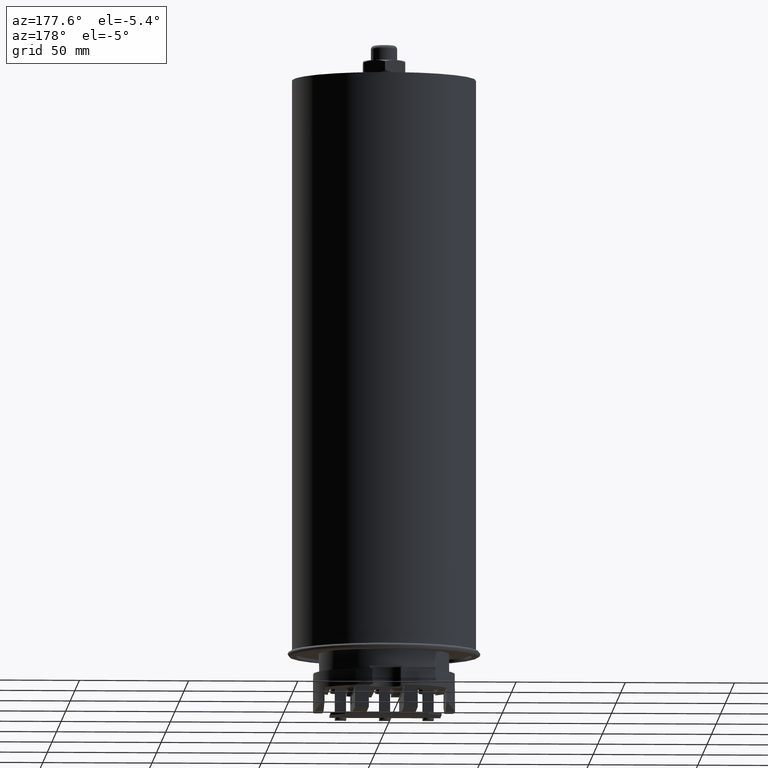
[diagram: clean part render]
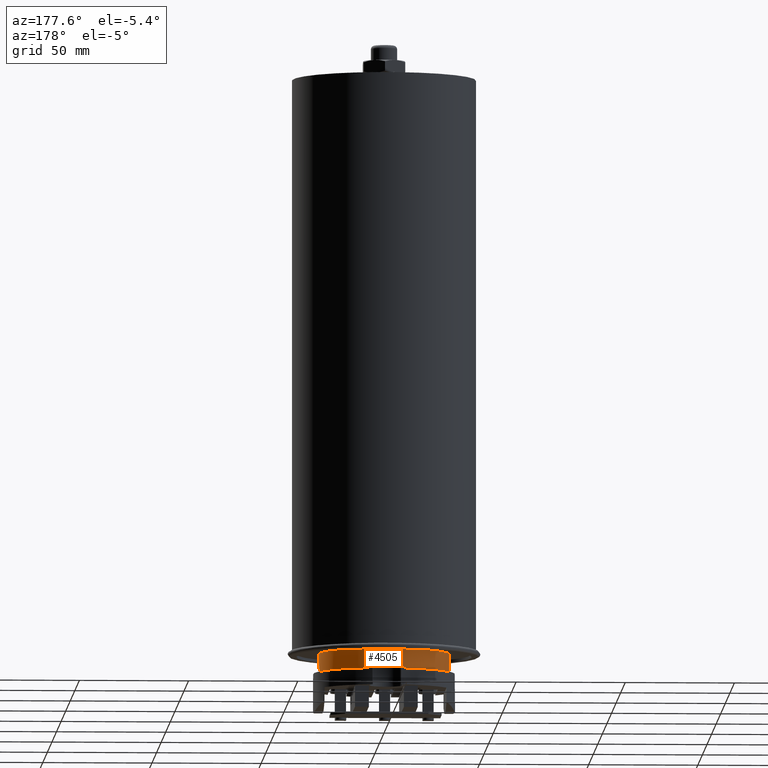
[diagram: same view with one face highlighted and labeled with its STEP entity id]
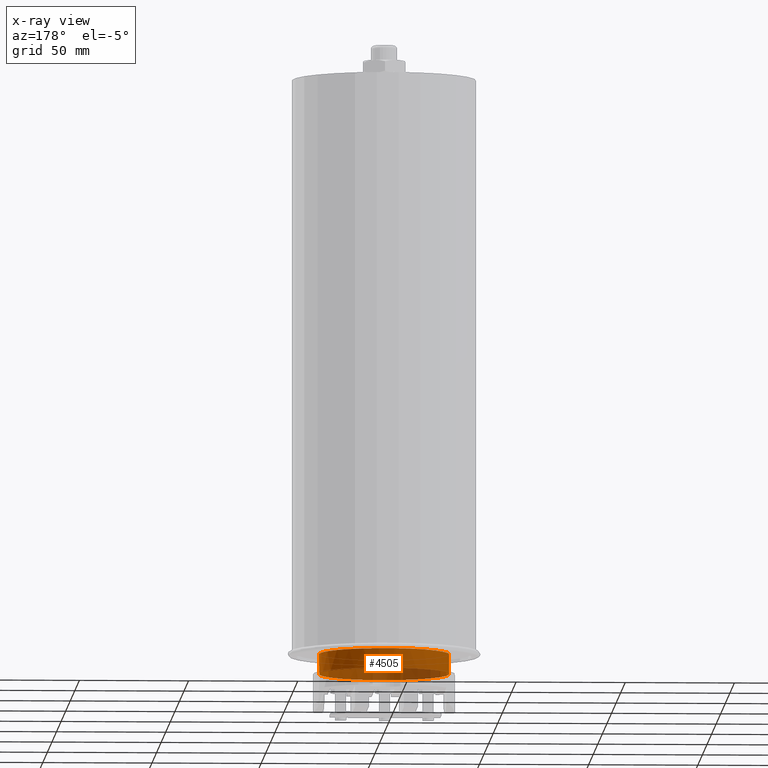
[diagram: x-ray of the same camera — body ghosted, the highlighted face saturated]
A machine part, auxiliary view. The second image highlights one B-rep face of the part: STEP entity #4505.
The next image is the same camera in x-ray: the body ghosted, the highlighted face saturated — about 33% of this face is hidden behind the body in this view.
In plain terms, the highlighted cylindrical surface (bore or boss wall) has radius 29.845 mm, axis along (0, 0, -1).
Its self-contained STEP definition (entity closure, byte-faithful):
#439=FACE_OUTER_BOUND('',#697,.T.);
#697=EDGE_LOOP('',(#3503,#3504,#3505,#3506,#3507,#3508,#3509,#3510));
#928=CIRCLE('',#4912,1.175);
#929=CIRCLE('',#4914,1.175);
#930=CIRCLE('',#4915,1.175);
#931=CIRCLE('',#4925,1.175);
#1181=LINE('',#6730,#1636);
#1182=LINE('',#6734,#1637);
#1193=LINE('',#6767,#1648);
#1636=VECTOR('',#5576,0.393700787401575);
#1637=VECTOR('',#5579,0.393700787401575);
#1648=VECTOR('',#5622,1.175);
#2074=VERTEX_POINT('',#6728);
#2075=VERTEX_POINT('',#6729);
#2076=VERTEX_POINT('',#6731);
#2077=VERTEX_POINT('',#6733);
#2078=VERTEX_POINT('',#6740);
#2083=VERTEX_POINT('',#6766);
#2583=EDGE_CURVE('',#2074,#2075,#1181,.T.);
#2585=EDGE_CURVE('',#2077,#2076,#1182,.T.);
#2588=EDGE_CURVE('',#2076,#2074,#928,.T.);
#2589=EDGE_CURVE('',#2078,#2077,#929,.T.);
#2590=EDGE_CURVE('',#2075,#2078,#930,.T.);
#2601=EDGE_CURVE('',#2078,#2083,#1193,.T.);
#2602=EDGE_CURVE('',#2083,#2083,#931,.T.);
#3503=ORIENTED_EDGE('',*,*,#2583,.T.);
#3504=ORIENTED_EDGE('',*,*,#2590,.T.);
#3505=ORIENTED_EDGE('',*,*,#2601,.T.);
#3506=ORIENTED_EDGE('',*,*,#2602,.F.);
#3507=ORIENTED_EDGE('',*,*,#2601,.F.);
#3508=ORIENTED_EDGE('',*,*,#2589,.T.);
#3509=ORIENTED_EDGE('',*,*,#2585,.T.);
#3510=ORIENTED_EDGE('',*,*,#2588,.T.);
#4356=CYLINDRICAL_SURFACE('',#4924,1.175);
#4505=ADVANCED_FACE('',(#439),#4356,.T.);
#4912=AXIS2_PLACEMENT_3D('',#6738,#5586,#5587);
#4914=AXIS2_PLACEMENT_3D('',#6741,#5590,#5591);
#4915=AXIS2_PLACEMENT_3D('',#6742,#5592,#5593);
#4924=AXIS2_PLACEMENT_3D('',#6765,#5620,#5621);
#4925=AXIS2_PLACEMENT_3D('',#6768,#5623,#5624);
#5576=DIRECTION('',(0.,0.,-1.));
#5579=DIRECTION('',(0.,0.,1.));
#5586=DIRECTION('center_axis',(0.,0.,1.));
#5587=DIRECTION('ref_axis',(1.,0.,0.));
#5590=DIRECTION('center_axis',(0.,0.,1.));
#5591=DIRECTION('ref_axis',(1.,0.,0.));
#5592=DIRECTION('center_axis',(0.,0.,1.));
#5593=DIRECTION('ref_axis',(1.,0.,0.));
#5620=DIRECTION('center_axis',(0.,0.,-1.));
#5621=DIRECTION('ref_axis',(1.,0.,0.));
#5622=DIRECTION('',(0.,0.,1.));
#5623=DIRECTION('center_axis',(0.,0.,1.));
#5624=DIRECTION('ref_axis',(1.,0.,0.));
#6728=CARTESIAN_POINT('',(-0.304070470746006,1.13497407407407,-0.312));
#6729=CARTESIAN_POINT('',(-0.304070470746006,1.13497407407407,-0.36));
#6730=CARTESIAN_POINT('',(-0.304070470746006,1.13497407407407,-0.66));
#6731=CARTESIAN_POINT('',(0.304070470746008,1.13497407407407,-0.312));
#6733=CARTESIAN_POINT('',(0.304070470746007,1.13497407407407,-0.36));
#6734=CARTESIAN_POINT('',(0.304070470746008,1.13497407407407,-0.66));
#6738=CARTESIAN_POINT('Origin',(0.,0.,-0.312));
#6740=CARTESIAN_POINT('',(-1.175,1.43895998899814E-16,-0.36));
#6741=CARTESIAN_POINT('Origin',(0.,0.,-0.36));
#6742=CARTESIAN_POINT('Origin',(0.,0.,-0.36));
#6765=CARTESIAN_POINT('Origin',(0.,0.,0.));
#6766=CARTESIAN_POINT('',(-1.175,1.43895998899814E-16,0.));
#6767=CARTESIAN_POINT('',(-1.175,1.43895998899814E-16,0.));
#6768=CARTESIAN_POINT('Origin',(0.,0.,0.));